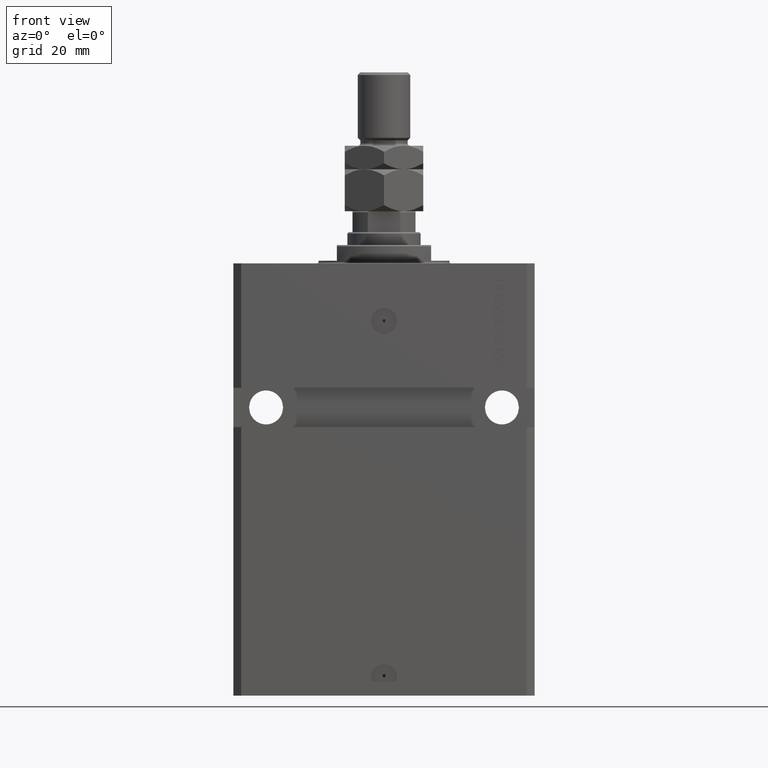
[diagram: clean part render]
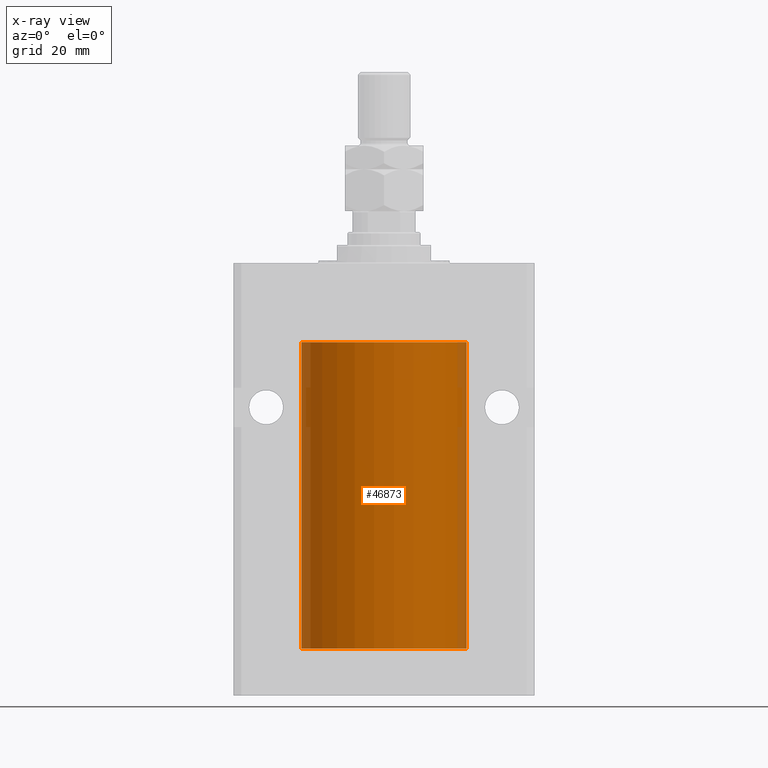
[diagram: x-ray — body ghosted, one internal face saturated and labeled with its STEP entity id]
A machine part, front view, then the same camera in x-ray: the body is ghosted and one INTERNAL B-rep face — a face not visible from any outside direction — is saturated and labeled: STEP entity #46873.
In plain terms, the highlighted cylindrical surface (partial cylindrical patch) has radius 31.5 mm, axis along (0, 0, 1).
Its self-contained STEP definition (entity closure, byte-faithful):
#723 = CARTESIAN_POINT ( 'NONE',  ( -31.50000000000000000, 3.857637417314162689E-15, -30.10000000000000142 ) ) ;
#3927 = CARTESIAN_POINT ( 'NONE',  ( -31.50000000000000000, -0.1631292369235461670, -144.6250000000001705 ) ) ;
#4411 = CARTESIAN_POINT ( 'NONE',  ( -31.49380174372966223, -0.6248613812773761156, -144.1653655539884085 ) ) ;
#5554 = DIRECTION ( 'NONE',  ( 0.000000000000000000, 0.000000000000000000, 1.000000000000000000 ) ) ;
#6705 = ORIENTED_EDGE ( 'NONE', *, *, #13260, .T. ) ;
#6910 = VERTEX_POINT ( 'NONE', #21702 ) ;
#6979 = CARTESIAN_POINT ( 'NONE',  ( 0.000000000000000000, 0.000000000000000000, -147.1000000000000227 ) ) ;
#6997 = CARTESIAN_POINT ( 'NONE',  ( 0.000000000000000000, 0.000000000000000000, -147.1000000000000227 ) ) ;
#7519 = CIRCLE ( 'NONE', #42019, 31.50000000000000000 ) ;
#7687 = ORIENTED_EDGE ( 'NONE', *, *, #40842, .T. ) ;
#8215 = AXIS2_PLACEMENT_3D ( 'NONE', #6997, #22595, #25266 ) ;
#10744 = CARTESIAN_POINT ( 'NONE',  ( -31.50000000000006395, 3.480980645563073824E-13, -144.6250000000032401 ) ) ;
#11391 = CARTESIAN_POINT ( 'NONE',  ( -31.49379625064871391, -0.6251381781549149030, -143.8356839311847182 ) ) ;
#11525 = CARTESIAN_POINT ( 'NONE',  ( -31.50000000000000000, 3.857637417314162689E-15, -147.1000000000000227 ) ) ;
#13255 = CARTESIAN_POINT ( 'NONE',  ( 0.000000000000000000, 0.000000000000000000, -30.10000000000000142 ) ) ;
#13260 = EDGE_CURVE ( 'NONE', #38104, #41376, #36064, .T. ) ;
#14295 = VECTOR ( 'NONE', #19804, 1000.000000000000000 ) ;
#14753 = CARTESIAN_POINT ( 'NONE',  ( -31.49528704891774211, -0.5569519313505124636, -144.3270938121662823 ) ) ;
#15120 = VECTOR ( 'NONE', #25271, 1000.000000000000000 ) ;
#17716 = VERTEX_POINT ( 'NONE', #723 ) ;
#18756 = CYLINDRICAL_SURFACE ( 'NONE', #8215, 31.50000000000000000 ) ;
#18882 = DIRECTION ( 'NONE',  ( -0.000000000000000000, -0.000000000000000000, 1.000000000000000000 ) ) ;
#19563 = VERTEX_POINT ( 'NONE', #11525 ) ;
#19804 = DIRECTION ( 'NONE',  ( -0.000000000000000000, -0.000000000000000000, 1.000000000000000000 ) ) ;
#21009 = EDGE_CURVE ( 'NONE', #41642, #6910, #22244, .T. ) ;
#21547 = EDGE_CURVE ( 'NONE', #41376, #17716, #31501, .T. ) ;
#21702 = CARTESIAN_POINT ( 'NONE',  ( 31.50000000000000000, 0.000000000000000000, -30.10000000000000142 ) ) ;
#22244 = LINE ( 'NONE', #45042, #25807 ) ;
#22425 = CARTESIAN_POINT ( 'NONE',  ( -31.50000000000000000, -1.368427456661360094E-15, -143.3750000000000000 ) ) ;
#22595 = DIRECTION ( 'NONE',  ( -0.000000000000000000, -0.000000000000000000, 1.000000000000000000 ) ) ;
#23398 = CARTESIAN_POINT ( 'NONE',  ( -31.50000000000000000, 3.857637417314162689E-15, -147.1000000000000227 ) ) ;
#24099 = EDGE_CURVE ( 'NONE', #17716, #6910, #7519, .T. ) ;
#25266 = DIRECTION ( 'NONE',  ( 1.000000000000000000, 0.000000000000000000, 0.000000000000000000 ) ) ;
#25271 = DIRECTION ( 'NONE',  ( -0.000000000000000000, -0.000000000000000000, 1.000000000000000000 ) ) ;
#25807 = VECTOR ( 'NONE', #18882, 1000.000000000000000 ) ;
#26042 = CARTESIAN_POINT ( 'NONE',  ( -31.49527619204366857, -0.5575625051463340975, -143.6738430774043422 ) ) ;
#27412 = ORIENTED_EDGE ( 'NONE', *, *, #21547, .T. ) ;
#30064 = ORIENTED_EDGE ( 'NONE', *, *, #40100, .F. ) ;
#31105 = CIRCLE ( 'NONE', #46468, 31.50000000000000000 ) ;
#31501 = LINE ( 'NONE', #46156, #15120 ) ;
#32730 = CARTESIAN_POINT ( 'NONE',  ( 31.50000000000000000, 0.000000000000000000, -147.1000000000000227 ) ) ;
#32986 = CARTESIAN_POINT ( 'NONE',  ( -31.50000000000006395, 3.480980645563073824E-13, -144.6250000000032401 ) ) ;
#33393 = FACE_OUTER_BOUND ( 'NONE', #44318, .T. ) ;
#34898 = LINE ( 'NONE', #23398, #14295 ) ;
#36036 = DIRECTION ( 'NONE',  ( 0.000000000000000000, 0.000000000000000000, 1.000000000000000000 ) ) ;
#36064 = B_SPLINE_CURVE_WITH_KNOTS ( 'NONE', 3,
 ( #32986, #3927, #41166, #14753, #4411, #11391, #26042, #40692, #44527, #22425 ),
 .UNSPECIFIED., .F., .F.,
 ( 4, 2, 2, 2, 4 ),
 ( 0.001954083649707802437, 0.002442494148669407429, 0.002930904647631011987, 0.003419315146592616979, 0.003907725645554221972 ),
 .UNSPECIFIED. ) ;
#36379 = ORIENTED_EDGE ( 'NONE', *, *, #21009, .F. ) ;
#36556 = ORIENTED_EDGE ( 'NONE', *, *, #24099, .T. ) ;
#37102 = CARTESIAN_POINT ( 'NONE',  ( -31.50000000000000000, -1.368427456661360094E-15, -143.3750000000000000 ) ) ;
#38104 = VERTEX_POINT ( 'NONE', #10744 ) ;
#38463 = DIRECTION ( 'NONE',  ( 1.000000000000000000, 0.000000000000000000, 0.000000000000000000 ) ) ;
#39177 = DIRECTION ( 'NONE',  ( 1.000000000000000000, 0.000000000000000000, 0.000000000000000000 ) ) ;
#40100 = EDGE_CURVE ( 'NONE', #19563, #41642, #31105, .T. ) ;
#40692 = CARTESIAN_POINT ( 'NONE',  ( -31.49851430197701063, -0.3269482044720625757, -143.4429011246694188 ) ) ;
#40842 = EDGE_CURVE ( 'NONE', #19563, #38104, #34898, .T. ) ;
#41166 = CARTESIAN_POINT ( 'NONE',  ( -31.49852099238383119, -0.3263081977449492910, -144.5574125724066903 ) ) ;
#41376 = VERTEX_POINT ( 'NONE', #37102 ) ;
#41642 = VERTEX_POINT ( 'NONE', #32730 ) ;
#42019 = AXIS2_PLACEMENT_3D ( 'NONE', #13255, #5554, #38463 ) ;
#44318 = EDGE_LOOP ( 'NONE', ( #30064, #7687, #6705, #27412, #36556, #36379 ) ) ;
#44527 = CARTESIAN_POINT ( 'NONE',  ( -31.49999999999999289, -0.1651478413230000331, -143.3749999999999716 ) ) ;
#45042 = CARTESIAN_POINT ( 'NONE',  ( 31.50000000000000000, 0.000000000000000000, -147.1000000000000227 ) ) ;
#46156 = CARTESIAN_POINT ( 'NONE',  ( -31.50000000000000000, 3.857637417314162689E-15, -147.1000000000000227 ) ) ;
#46468 = AXIS2_PLACEMENT_3D ( 'NONE', #6979, #36036, #39177 ) ;
#46873 = ADVANCED_FACE ( 'NONE', ( #33393 ), #18756, .F. ) ;